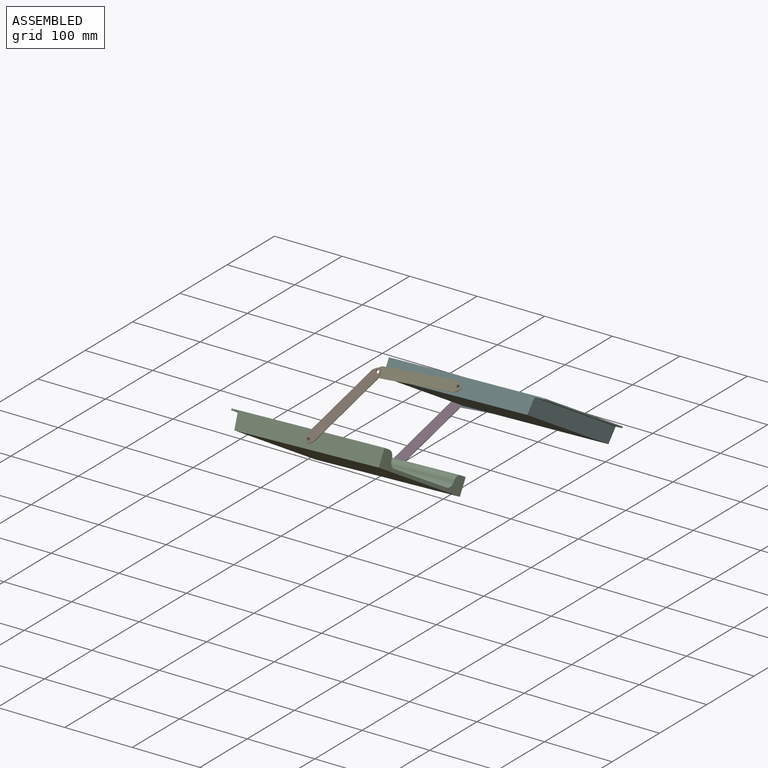
[diagram: assembled view]
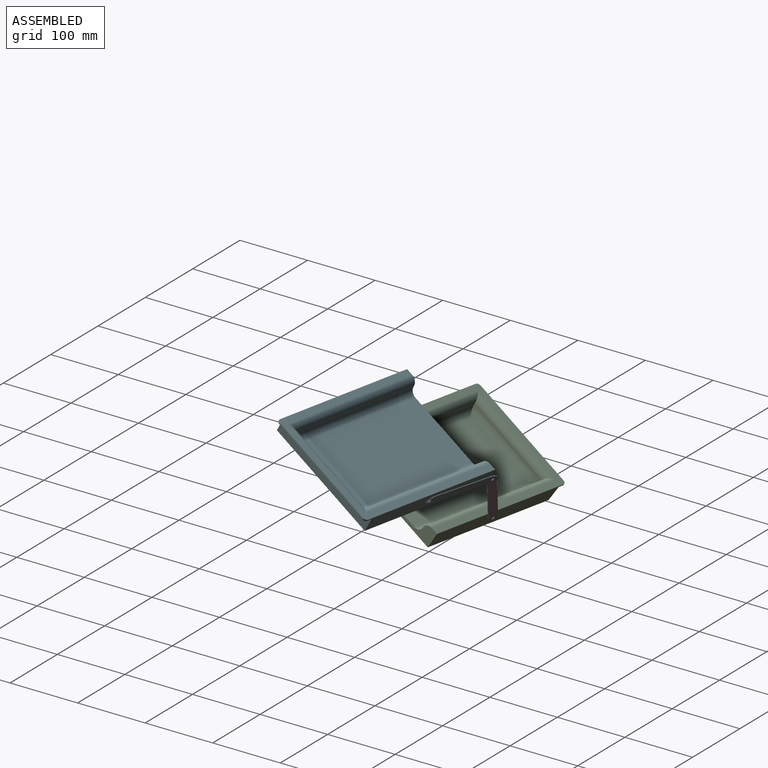
[diagram: assembled view, second angle]
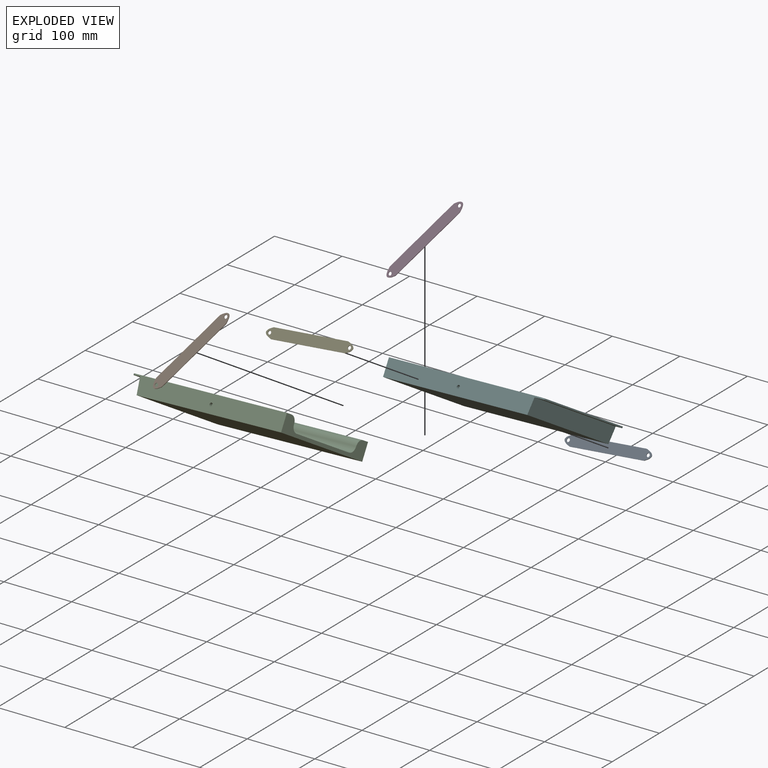
[diagram: exploded view]
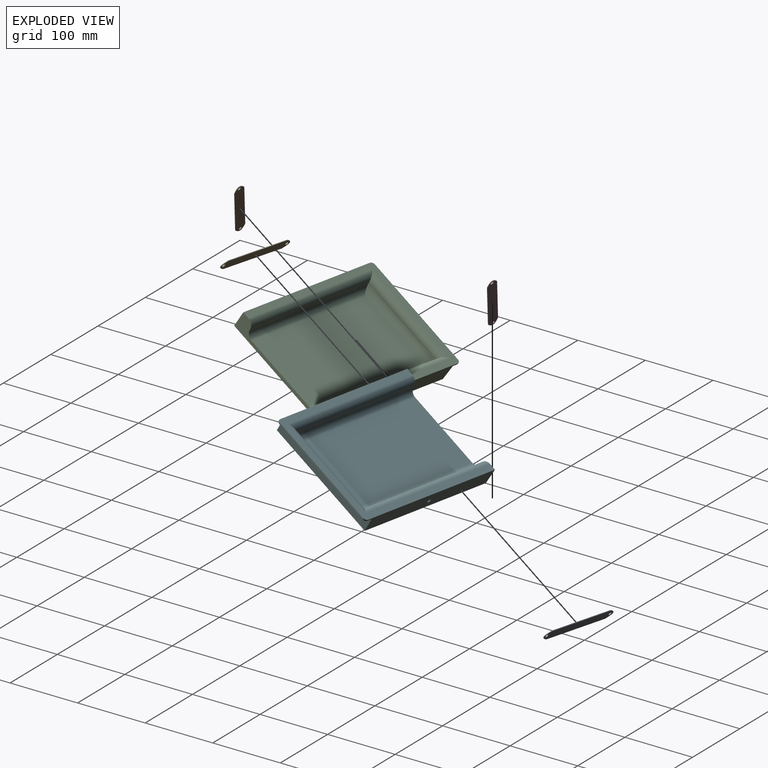
[diagram: exploded view, second angle]
ASSEMBLY  parts=6 mates=6
PART A: 8 faces, bbox 142.9x15x1 mm
  f0: plane 115.35x1mm, normal (0,1,0), area 115.3mm2, adj f1,f4,f6,f7
  f1: extruded ~15x10mm, area 26.2mm2, adj f0,f2,f6,f7
  f2: plane 115.35x1mm, normal (0,-1,0), area 115.3mm2, adj f1,f4,f6,f7
  f3: cylinder r=2.5mm len=5mm, axis (0,0,-1), area 15.7mm2, adj f6,f7
  f4: extruded ~15x10mm, area 26.2mm2, adj f0,f2,f6,f7
  f5: cylinder r=2.5mm len=5mm, axis (0,0,-1), area 15.7mm2, adj f6,f7
  f6: plane 142.85x15mm, normal (0,0,1), area 1891mm2, adj f0,f1,f2,f3,f4,f5
  f7: plane 142.85x15mm, normal (0,0,-1), area 1891mm2, adj f0,f1,f2,f3,f4,f5
PART B: same geometry as A
PART C: 21 faces, bbox 245x170x25 mm
  f0: plane 240x25mm, normal (0,1,0), area 5761.9mm2, adj f2,f3,f5,f7,f8,f15,f17
  f1: plane 160x2mm, normal (-1,0,0), area 320mm2, adj f3,f8,f15,f16
  f2: plane 229x170mm, normal (0,0,-1), area 38930mm2, adj f0,f4,f5,f7
  f3: plane 245x170mm, normal (0,0,1), area 6389.3mm2, adj f0,f1,f4,f5,f10,f12,f14,f15
  f4: plane 240x25mm, normal (0,-1,0), area 5761.9mm2, adj f2,f3,f5,f7,f8,f16,f19
  f5: plane 170x25mm, normal (1,0,0), area 1650mm2, adj f0,f2,f3,f4,f6,f9,f10,f13
  f6: plane 215x110mm, normal (0,0,1), area 23650mm2, adj f5,f9,f11,f13
  f7: plane 170x23mm, normal (-0.99,0,-0.13), area 3943.1mm2, adj f0,f2,f4,f8
  f8: plane 170x13mm, normal (0,0,-1), area 2199.3mm2, adj f0,f1,f4,f7,f15,f16
  f9: cylinder r=10mm len=225mm, axis (-1,0,0), area 3477.2mm2, adj f5,f6,f10,f11
  f10: cylinder r=10mm len=235mm, axis (1,0,0), area 3591.4mm2, adj f3,f5,f9,f12
  f11: cylinder r=10mm len=130mm, axis (0,-1,0), area 1927.9mm2, adj f6,f9,f12,f13
  f12: cylinder r=10mm len=150mm, axis (0,1,0), area 2156.2mm2, adj f3,f10,f11,f14
  f13: cylinder r=10mm len=225mm, axis (1,0,0), area 3477.2mm2, adj f5,f6,f11,f14
  f14: cylinder r=10mm len=235mm, axis (-1,0,0), area 3591.4mm2, adj f3,f5,f12,f13
  f15: cylinder r=5mm len=5mm, axis (0,0,1), area 15.7mm2, adj f0,f1,f3,f8
  f16: cylinder r=5mm len=5mm, axis (0,0,-1), area 15.7mm2, adj f1,f3,f4,f8
  f17: cylinder r=2.5mm len=5mm, axis (0,1,0), area 78.5mm2, adj f0,f18
  f18: plane 5x5mm, normal (0,1,0), area 19.6mm2, adj f17
  f19: cylinder r=2.5mm len=5mm, axis (0,-1,0), area 78.5mm2, adj f4,f20
  f20: plane 5x5mm, normal (0,-1,0), area 19.6mm2, adj f19
PART D: same geometry as A
PART E: same geometry as A
PART F: same geometry as C
PLACE A rot(axis=(-1,-0.01,-0.08),122.1deg) t=(393.96,-340.48,735.74)mm
PLACE B rot(axis=(0.65,-0.44,0.62),76.8deg) t=(201.51,-427.47,880.15)mm
PLACE C rot(axis=(-0.98,-0.1,-0.19),32.5deg) t=(344.88,-500.49,793.45)mm
PLACE D rot(axis=(-0.86,-0.42,-0.3),132deg) t=(355.69,-345.54,721.03)mm
PLACE E rot(axis=(0.99,-0.14,0.01),58.5deg) t=(362.23,-397.02,962.89)mm
PLACE F rot(axis=(-0.03,0.27,0.96),174deg) t=(328.26,-296.1,793.15)mm
MATE revolute E.f3 <-> F.f19  axis (0.11,0.85,-0.52) through (422.99,-443.79,900.52)mm
MATE revolute D.f3 <-> A.f5  axis (-0.11,-0.85,0.52) through (319.32,-292.89,796.37)mm
MATE revolute B.f3 <-> E.f5  axis (0.11,0.85,-0.52) through (299.69,-437.43,885.63)mm
MATE revolute A.f3 <-> F.f17  axis (-0.11,-0.85,0.52) through (442.5,-300.11,811.79)mm
MATE revolute D.f5 <-> C.f19  axis (-0.11,-0.85,0.52) through (249.67,-340.9,705.23)mm
MATE revolute B.f5 <-> C.f17  axis (0.11,0.85,-0.52) through (230.15,-484.59,793.96)mm
